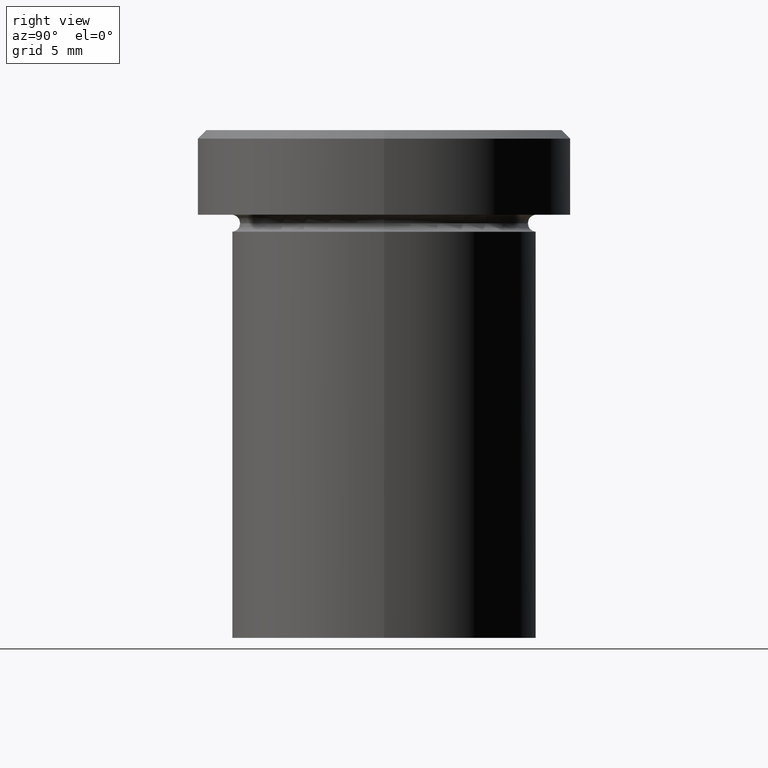
[diagram: clean part render]
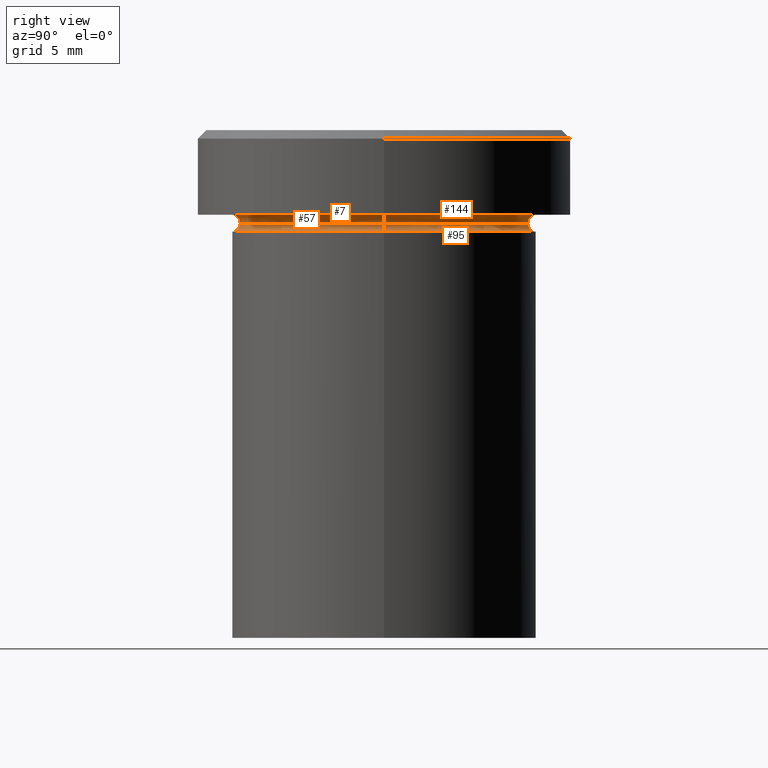
[diagram: same view with one multi-face feature highlighted, each face labeled with its STEP entity id]
A machine part, right view. The highlighted faces form ONE feature: a constant-radius fillet chain: 4 tangent blend faces with common blend radius 0.5 mm. The faces share edges in the B-rep.
Their STEP definitions:
[1] entity #57 (Torus):
#15 = DIRECTION ( 'NONE',  ( -1.000000000000000000, 0.000000000000000000, 0.000000000000000000 ) ) ;
#29 = AXIS2_PLACEMENT_3D ( 'NONE', #357, #190, #15 ) ;
#47 = EDGE_CURVE ( 'NONE', #235, #133, #126, .T. ) ;
#57 = ADVANCED_FACE ( 'NONE', ( #151 ), #121, .F. ) ;
#59 = VERTEX_POINT ( 'NONE', #64 ) ;
#63 = CIRCLE ( 'NONE', #29, 9.000000000000000000 ) ;
#64 = CARTESIAN_POINT ( 'NONE',  ( -8.499999999999998224, 1.071565949253933927E-15, -5.500000000000000000 ) ) ;
#87 = CARTESIAN_POINT ( 'NONE',  ( 8.499999999999998224, 0.000000000000000000, -5.500000000000000000 ) ) ;
#96 = VERTEX_POINT ( 'NONE', #105 ) ;
#98 = AXIS2_PLACEMENT_3D ( 'NONE', #250, #192, #156 ) ;
#105 = CARTESIAN_POINT ( 'NONE',  ( -9.000000000000000000, 0.000000000000000000, -4.999999999999999112 ) ) ;
#110 = AXIS2_PLACEMENT_3D ( 'NONE', #223, #356, #399 ) ;
#121 = TOROIDAL_SURFACE ( 'NONE', #409, 9.000000000000000000, 0.5000000000000000000 ) ;
#126 = CIRCLE ( 'NONE', #110, 0.5000000000000004441 ) ;
#133 = VERTEX_POINT ( 'NONE', #141 ) ;
#140 = ORIENTED_EDGE ( 'NONE', *, *, #47, .T. ) ;
#141 = CARTESIAN_POINT ( 'NONE',  ( 9.000000000000000000, 1.102182119232617714E-15, -4.999999999999999112 ) ) ;
#151 = FACE_OUTER_BOUND ( 'NONE', #403, .T. ) ;
#156 = DIRECTION ( 'NONE',  ( 1.000000000000000000, 0.000000000000000000, 0.000000000000000000 ) ) ;
#190 = DIRECTION ( 'NONE',  ( -0.000000000000000000, -0.000000000000000000, 1.000000000000000000 ) ) ;
#192 = DIRECTION ( 'NONE',  ( -0.000000000000000000, -0.000000000000000000, 1.000000000000000000 ) ) ;
#195 = EDGE_CURVE ( 'NONE', #59, #235, #264, .T. ) ;
#197 = AXIS2_PLACEMENT_3D ( 'NONE', #206, #302, #211 ) ;
#206 = CARTESIAN_POINT ( 'NONE',  ( -9.000000000000000000, 0.000000000000000000, -5.500000000000000000 ) ) ;
#208 = CARTESIAN_POINT ( 'NONE',  ( 0.000000000000000000, 0.000000000000000000, -5.500000000000000000 ) ) ;
#211 = DIRECTION ( 'NONE',  ( 0.000000000000000000, 0.000000000000000000, -1.000000000000000000 ) ) ;
#223 = CARTESIAN_POINT ( 'NONE',  ( 9.000000000000000000, 1.102182119232617714E-15, -5.500000000000000000 ) ) ;
#235 = VERTEX_POINT ( 'NONE', #87 ) ;
#250 = CARTESIAN_POINT ( 'NONE',  ( 0.000000000000000000, 0.000000000000000000, -5.500000000000000000 ) ) ;
#252 = EDGE_CURVE ( 'NONE', #59, #96, #325, .T. ) ;
#264 = CIRCLE ( 'NONE', #98, 8.499999999999998224 ) ;
#297 = ORIENTED_EDGE ( 'NONE', *, *, #195, .T. ) ;
#302 = DIRECTION ( 'NONE',  ( -0.000000000000000000, -1.000000000000000000, -0.000000000000000000 ) ) ;
#309 = DIRECTION ( 'NONE',  ( 0.000000000000000000, 0.000000000000000000, -1.000000000000000000 ) ) ;
#316 = DIRECTION ( 'NONE',  ( -1.000000000000000000, 0.000000000000000000, 0.000000000000000000 ) ) ;
#325 = CIRCLE ( 'NONE', #197, 0.5000000000000004441 ) ;
#332 = EDGE_CURVE ( 'NONE', #96, #133, #63, .T. ) ;
#356 = DIRECTION ( 'NONE',  ( -1.224646799147353207E-16, 1.000000000000000000, 0.000000000000000000 ) ) ;
#357 = CARTESIAN_POINT ( 'NONE',  ( 0.000000000000000000, 0.000000000000000000, -5.000000000000000000 ) ) ;
#374 = ORIENTED_EDGE ( 'NONE', *, *, #252, .F. ) ;
#390 = ORIENTED_EDGE ( 'NONE', *, *, #332, .F. ) ;
#399 = DIRECTION ( 'NONE',  ( -1.000000000000000000, -1.224646799147353454E-16, 0.000000000000000000 ) ) ;
#403 = EDGE_LOOP ( 'NONE', ( #297, #140, #390, #374 ) ) ;
#409 = AXIS2_PLACEMENT_3D ( 'NONE', #208, #309, #316 ) ;
[2] entity #144 (Torus):
#1 = DIRECTION ( 'NONE',  ( 1.000000000000000000, 0.000000000000000000, 0.000000000000000000 ) ) ;
#26 = ORIENTED_EDGE ( 'NONE', *, *, #260, .T. ) ;
#31 = EDGE_LOOP ( 'NONE', ( #117, #26, #161, #55 ) ) ;
#47 = EDGE_CURVE ( 'NONE', #235, #133, #126, .T. ) ;
#50 = AXIS2_PLACEMENT_3D ( 'NONE', #402, #373, #339 ) ;
#55 = ORIENTED_EDGE ( 'NONE', *, *, #153, .F. ) ;
#59 = VERTEX_POINT ( 'NONE', #64 ) ;
#64 = CARTESIAN_POINT ( 'NONE',  ( -8.499999999999998224, 1.071565949253933927E-15, -5.500000000000000000 ) ) ;
#76 = DIRECTION ( 'NONE',  ( -1.000000000000000000, 0.000000000000000000, 0.000000000000000000 ) ) ;
#87 = CARTESIAN_POINT ( 'NONE',  ( 8.499999999999998224, 0.000000000000000000, -5.500000000000000000 ) ) ;
#96 = VERTEX_POINT ( 'NONE', #105 ) ;
#105 = CARTESIAN_POINT ( 'NONE',  ( -9.000000000000000000, 0.000000000000000000, -4.999999999999999112 ) ) ;
#110 = AXIS2_PLACEMENT_3D ( 'NONE', #223, #356, #399 ) ;
#115 = AXIS2_PLACEMENT_3D ( 'NONE', #180, #239, #1 ) ;
#117 = ORIENTED_EDGE ( 'NONE', *, *, #47, .F. ) ;
#126 = CIRCLE ( 'NONE', #110, 0.5000000000000004441 ) ;
#133 = VERTEX_POINT ( 'NONE', #141 ) ;
#141 = CARTESIAN_POINT ( 'NONE',  ( 9.000000000000000000, 1.102182119232617714E-15, -4.999999999999999112 ) ) ;
#144 = ADVANCED_FACE ( 'NONE', ( #286 ), #361, .F. ) ;
#148 = CIRCLE ( 'NONE', #364, 9.000000000000000000 ) ;
#153 = EDGE_CURVE ( 'NONE', #133, #96, #148, .T. ) ;
#161 = ORIENTED_EDGE ( 'NONE', *, *, #252, .T. ) ;
#180 = CARTESIAN_POINT ( 'NONE',  ( 0.000000000000000000, 0.000000000000000000, -5.500000000000000000 ) ) ;
#191 = DIRECTION ( 'NONE',  ( -0.000000000000000000, -0.000000000000000000, 1.000000000000000000 ) ) ;
#197 = AXIS2_PLACEMENT_3D ( 'NONE', #206, #302, #211 ) ;
#202 = CARTESIAN_POINT ( 'NONE',  ( 0.000000000000000000, 0.000000000000000000, -5.000000000000000000 ) ) ;
#206 = CARTESIAN_POINT ( 'NONE',  ( -9.000000000000000000, 0.000000000000000000, -5.500000000000000000 ) ) ;
#211 = DIRECTION ( 'NONE',  ( 0.000000000000000000, 0.000000000000000000, -1.000000000000000000 ) ) ;
#223 = CARTESIAN_POINT ( 'NONE',  ( 9.000000000000000000, 1.102182119232617714E-15, -5.500000000000000000 ) ) ;
#235 = VERTEX_POINT ( 'NONE', #87 ) ;
#239 = DIRECTION ( 'NONE',  ( -0.000000000000000000, -0.000000000000000000, 1.000000000000000000 ) ) ;
#245 = CIRCLE ( 'NONE', #115, 8.499999999999998224 ) ;
#252 = EDGE_CURVE ( 'NONE', #59, #96, #325, .T. ) ;
#260 = EDGE_CURVE ( 'NONE', #235, #59, #245, .T. ) ;
#286 = FACE_OUTER_BOUND ( 'NONE', #31, .T. ) ;
#302 = DIRECTION ( 'NONE',  ( -0.000000000000000000, -1.000000000000000000, -0.000000000000000000 ) ) ;
#325 = CIRCLE ( 'NONE', #197, 0.5000000000000004441 ) ;
#339 = DIRECTION ( 'NONE',  ( -1.000000000000000000, 0.000000000000000000, 0.000000000000000000 ) ) ;
#356 = DIRECTION ( 'NONE',  ( -1.224646799147353207E-16, 1.000000000000000000, 0.000000000000000000 ) ) ;
#361 = TOROIDAL_SURFACE ( 'NONE', #50, 9.000000000000000000, 0.5000000000000000000 ) ;
#364 = AXIS2_PLACEMENT_3D ( 'NONE', #202, #191, #76 ) ;
#373 = DIRECTION ( 'NONE',  ( 0.000000000000000000, 0.000000000000000000, -1.000000000000000000 ) ) ;
#399 = DIRECTION ( 'NONE',  ( -1.000000000000000000, -1.224646799147353454E-16, 0.000000000000000000 ) ) ;
#402 = CARTESIAN_POINT ( 'NONE',  ( 0.000000000000000000, 0.000000000000000000, -5.500000000000000000 ) ) ;
[3] entity #95 (Torus):
#1 = DIRECTION ( 'NONE',  ( 1.000000000000000000, 0.000000000000000000, 0.000000000000000000 ) ) ;
#8 = DIRECTION ( 'NONE',  ( 1.000000000000000000, 0.000000000000000000, 0.000000000000000000 ) ) ;
#35 = ORIENTED_EDGE ( 'NONE', *, *, #194, .F. ) ;
#36 = CIRCLE ( 'NONE', #103, 0.5000000000000004441 ) ;
#56 = CIRCLE ( 'NONE', #380, 0.5000000000000004441 ) ;
#59 = VERTEX_POINT ( 'NONE', #64 ) ;
#60 = DIRECTION ( 'NONE',  ( 0.000000000000000000, 0.000000000000000000, -1.000000000000000000 ) ) ;
#64 = CARTESIAN_POINT ( 'NONE',  ( -8.499999999999998224, 1.071565949253933927E-15, -5.500000000000000000 ) ) ;
#66 = CARTESIAN_POINT ( 'NONE',  ( 9.000000000000000000, 0.000000000000000000, -6.000000000000000000 ) ) ;
#83 = EDGE_LOOP ( 'NONE', ( #35, #172, #241, #408 ) ) ;
#87 = CARTESIAN_POINT ( 'NONE',  ( 8.499999999999998224, 0.000000000000000000, -5.500000000000000000 ) ) ;
#95 = ADVANCED_FACE ( 'NONE', ( #304 ), #219, .F. ) ;
#103 = AXIS2_PLACEMENT_3D ( 'NONE', #318, #247, #350 ) ;
#115 = AXIS2_PLACEMENT_3D ( 'NONE', #180, #239, #1 ) ;
#120 = CARTESIAN_POINT ( 'NONE',  ( 9.000000000000000000, 0.000000000000000000, -5.500000000000000000 ) ) ;
#125 = EDGE_CURVE ( 'NONE', #254, #259, #251, .T. ) ;
#130 = DIRECTION ( 'NONE',  ( -0.000000000000000000, -0.000000000000000000, 1.000000000000000000 ) ) ;
#131 = AXIS2_PLACEMENT_3D ( 'NONE', #340, #130, #327 ) ;
#150 = DIRECTION ( 'NONE',  ( 0.000000000000000000, -1.000000000000000000, 0.000000000000000000 ) ) ;
#163 = DIRECTION ( 'NONE',  ( -0.000000000000000000, -0.000000000000000000, 1.000000000000000000 ) ) ;
#172 = ORIENTED_EDGE ( 'NONE', *, *, #260, .F. ) ;
#180 = CARTESIAN_POINT ( 'NONE',  ( 0.000000000000000000, 0.000000000000000000, -5.500000000000000000 ) ) ;
#194 = EDGE_CURVE ( 'NONE', #59, #259, #36, .T. ) ;
#219 = TOROIDAL_SURFACE ( 'NONE', #387, 9.000000000000000000, 0.5000000000000000000 ) ;
#235 = VERTEX_POINT ( 'NONE', #87 ) ;
#238 = EDGE_CURVE ( 'NONE', #235, #254, #56, .T. ) ;
#239 = DIRECTION ( 'NONE',  ( -0.000000000000000000, -0.000000000000000000, 1.000000000000000000 ) ) ;
#241 = ORIENTED_EDGE ( 'NONE', *, *, #238, .T. ) ;
#245 = CIRCLE ( 'NONE', #115, 8.499999999999998224 ) ;
#247 = DIRECTION ( 'NONE',  ( 1.224646799147353207E-16, 1.000000000000000000, 0.000000000000000000 ) ) ;
#251 = CIRCLE ( 'NONE', #131, 9.000000000000000000 ) ;
#254 = VERTEX_POINT ( 'NONE', #66 ) ;
#259 = VERTEX_POINT ( 'NONE', #272 ) ;
#260 = EDGE_CURVE ( 'NONE', #235, #59, #245, .T. ) ;
#272 = CARTESIAN_POINT ( 'NONE',  ( -9.000000000000000000, 1.102182119232617714E-15, -6.000000000000000000 ) ) ;
#304 = FACE_OUTER_BOUND ( 'NONE', #83, .T. ) ;
#310 = CARTESIAN_POINT ( 'NONE',  ( 0.000000000000000000, 0.000000000000000000, -5.500000000000000000 ) ) ;
#318 = CARTESIAN_POINT ( 'NONE',  ( -9.000000000000000000, 1.102182119232617714E-15, -5.500000000000000000 ) ) ;
#327 = DIRECTION ( 'NONE',  ( 1.000000000000000000, 0.000000000000000000, 0.000000000000000000 ) ) ;
#340 = CARTESIAN_POINT ( 'NONE',  ( 0.000000000000000000, 0.000000000000000000, -6.000000000000000000 ) ) ;
#350 = DIRECTION ( 'NONE',  ( -1.000000000000000000, 1.224646799147353454E-16, 0.000000000000000000 ) ) ;
#380 = AXIS2_PLACEMENT_3D ( 'NONE', #120, #150, #60 ) ;
#387 = AXIS2_PLACEMENT_3D ( 'NONE', #310, #163, #8 ) ;
#408 = ORIENTED_EDGE ( 'NONE', *, *, #125, .T. ) ;
[4] entity #7 (Torus):
#7 = ADVANCED_FACE ( 'NONE', ( #395 ), #62, .F. ) ;
#36 = CIRCLE ( 'NONE', #103, 0.5000000000000004441 ) ;
#56 = CIRCLE ( 'NONE', #380, 0.5000000000000004441 ) ;
#59 = VERTEX_POINT ( 'NONE', #64 ) ;
#60 = DIRECTION ( 'NONE',  ( 0.000000000000000000, 0.000000000000000000, -1.000000000000000000 ) ) ;
#61 = ORIENTED_EDGE ( 'NONE', *, *, #194, .T. ) ;
#62 = TOROIDAL_SURFACE ( 'NONE', #244, 9.000000000000000000, 0.5000000000000000000 ) ;
#64 = CARTESIAN_POINT ( 'NONE',  ( -8.499999999999998224, 1.071565949253933927E-15, -5.500000000000000000 ) ) ;
#66 = CARTESIAN_POINT ( 'NONE',  ( 9.000000000000000000, 0.000000000000000000, -6.000000000000000000 ) ) ;
#70 = CARTESIAN_POINT ( 'NONE',  ( 0.000000000000000000, 0.000000000000000000, -6.000000000000000000 ) ) ;
#87 = CARTESIAN_POINT ( 'NONE',  ( 8.499999999999998224, 0.000000000000000000, -5.500000000000000000 ) ) ;
#98 = AXIS2_PLACEMENT_3D ( 'NONE', #250, #192, #156 ) ;
#103 = AXIS2_PLACEMENT_3D ( 'NONE', #318, #247, #350 ) ;
#120 = CARTESIAN_POINT ( 'NONE',  ( 9.000000000000000000, 0.000000000000000000, -5.500000000000000000 ) ) ;
#124 = AXIS2_PLACEMENT_3D ( 'NONE', #70, #240, #376 ) ;
#129 = ORIENTED_EDGE ( 'NONE', *, *, #169, .T. ) ;
#150 = DIRECTION ( 'NONE',  ( 0.000000000000000000, -1.000000000000000000, 0.000000000000000000 ) ) ;
#156 = DIRECTION ( 'NONE',  ( 1.000000000000000000, 0.000000000000000000, 0.000000000000000000 ) ) ;
#169 = EDGE_CURVE ( 'NONE', #259, #254, #299, .T. ) ;
#170 = DIRECTION ( 'NONE',  ( -0.000000000000000000, -0.000000000000000000, 1.000000000000000000 ) ) ;
#192 = DIRECTION ( 'NONE',  ( -0.000000000000000000, -0.000000000000000000, 1.000000000000000000 ) ) ;
#194 = EDGE_CURVE ( 'NONE', #59, #259, #36, .T. ) ;
#195 = EDGE_CURVE ( 'NONE', #59, #235, #264, .T. ) ;
#200 = DIRECTION ( 'NONE',  ( 1.000000000000000000, 0.000000000000000000, 0.000000000000000000 ) ) ;
#235 = VERTEX_POINT ( 'NONE', #87 ) ;
#238 = EDGE_CURVE ( 'NONE', #235, #254, #56, .T. ) ;
#240 = DIRECTION ( 'NONE',  ( -0.000000000000000000, -0.000000000000000000, 1.000000000000000000 ) ) ;
#244 = AXIS2_PLACEMENT_3D ( 'NONE', #322, #170, #200 ) ;
#247 = DIRECTION ( 'NONE',  ( 1.224646799147353207E-16, 1.000000000000000000, 0.000000000000000000 ) ) ;
#250 = CARTESIAN_POINT ( 'NONE',  ( 0.000000000000000000, 0.000000000000000000, -5.500000000000000000 ) ) ;
#254 = VERTEX_POINT ( 'NONE', #66 ) ;
#259 = VERTEX_POINT ( 'NONE', #272 ) ;
#264 = CIRCLE ( 'NONE', #98, 8.499999999999998224 ) ;
#272 = CARTESIAN_POINT ( 'NONE',  ( -9.000000000000000000, 1.102182119232617714E-15, -6.000000000000000000 ) ) ;
#285 = ORIENTED_EDGE ( 'NONE', *, *, #195, .F. ) ;
#299 = CIRCLE ( 'NONE', #124, 9.000000000000000000 ) ;
#318 = CARTESIAN_POINT ( 'NONE',  ( -9.000000000000000000, 1.102182119232617714E-15, -5.500000000000000000 ) ) ;
#322 = CARTESIAN_POINT ( 'NONE',  ( 0.000000000000000000, 0.000000000000000000, -5.500000000000000000 ) ) ;
#350 = DIRECTION ( 'NONE',  ( -1.000000000000000000, 1.224646799147353454E-16, 0.000000000000000000 ) ) ;
#370 = ORIENTED_EDGE ( 'NONE', *, *, #238, .F. ) ;
#376 = DIRECTION ( 'NONE',  ( 1.000000000000000000, 0.000000000000000000, 0.000000000000000000 ) ) ;
#380 = AXIS2_PLACEMENT_3D ( 'NONE', #120, #150, #60 ) ;
#395 = FACE_OUTER_BOUND ( 'NONE', #404, .T. ) ;
#404 = EDGE_LOOP ( 'NONE', ( #285, #61, #129, #370 ) ) ;